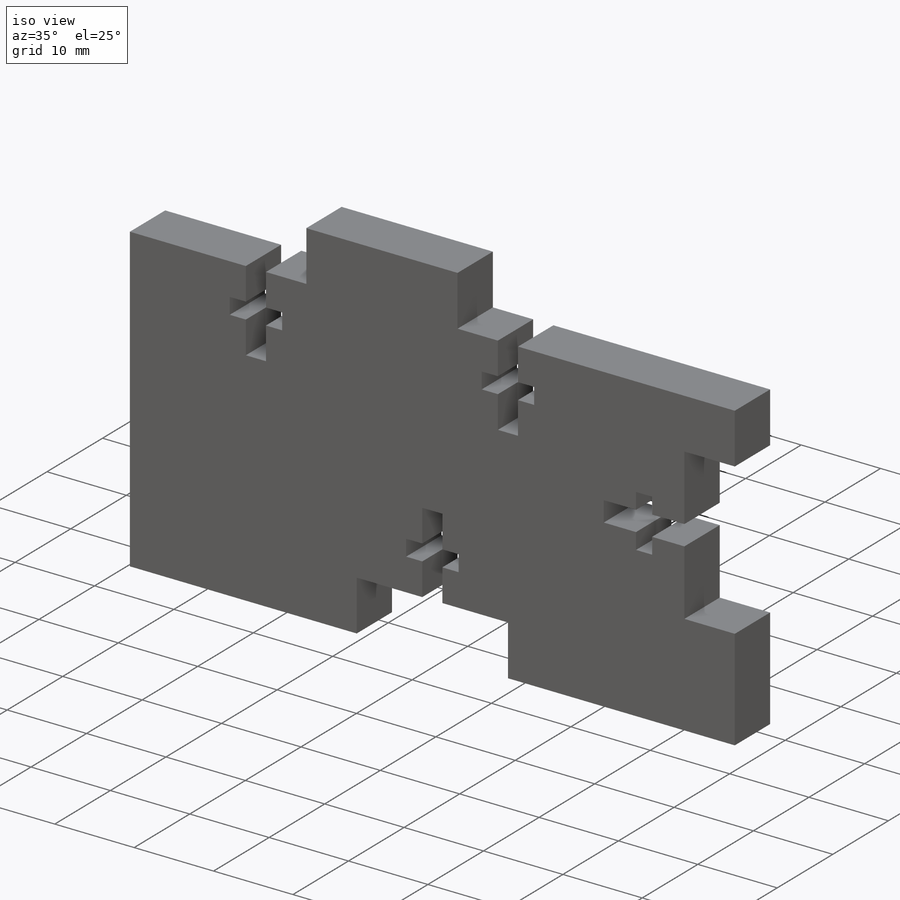
[diagram: iso view]
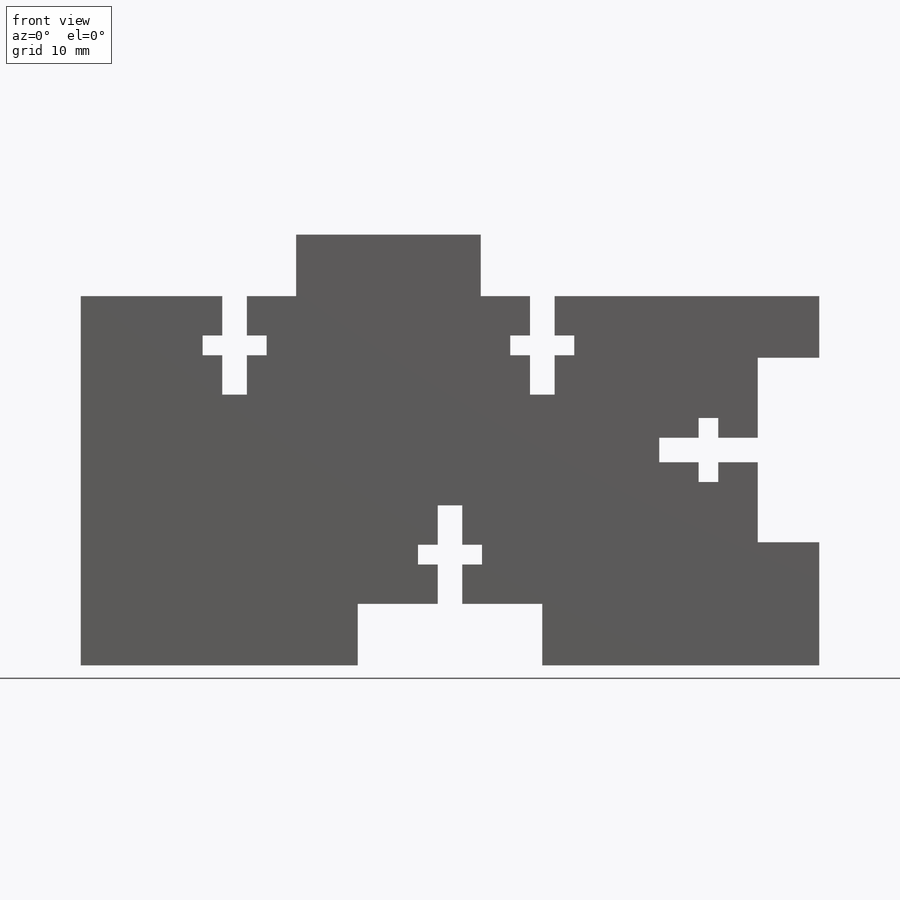
[diagram: front view]
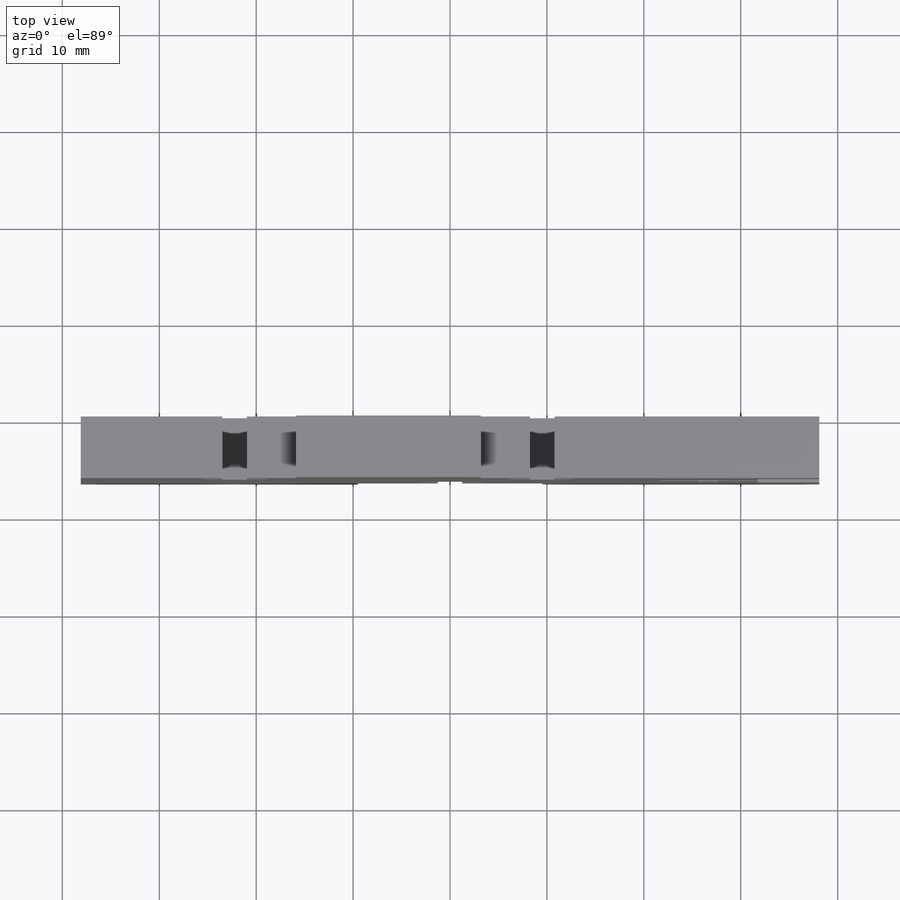
[diagram: top view]
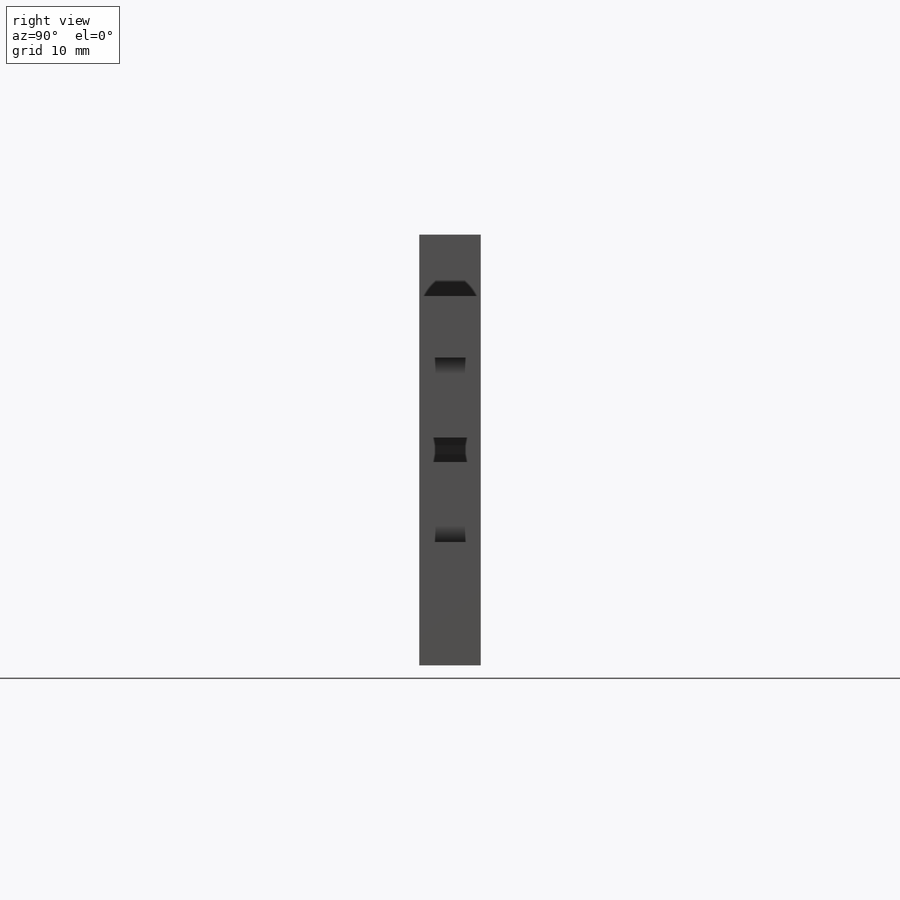
[diagram: right view]
SOLIDWORKS PART (.sldprt)
format: sldprt  version: not decoded by parser v0  size: 363,008 bytes
history: native  units: mm
features: sketch x6, extrude x3, cut_extrude x3, material x1 (+13 scaffold rows collapsed)
feature tree (26):
  scaffold x13  (default folders/planes/origin — collapsed)
  material  "Material <not specified>"
  sketch  "Sketch1"  dims[D1=31.75mm D2=76.2mm]
  extrude  "Boss-Extrude1"  Depth=6.35mm
  sketch  "Sketch2"  dims[D1=19.05mm D2=6.35mm D3=31.75mm D4=19.05mm]
  extrude  "Boss-Extrude2"  [1 undecoded]
  sketch  "Sketch3"  dims[D1=2.54mm D2=10.16mm D3=2.032mm D4=6.604mm D5=15.875mm]
  cut_extrude  "Cut-Extrude1"  [1 undecoded]
  sketch  "Sketch4"  dims[c1.D1=6.35mm c1.D2=19.05mm c1.D3=2.54mm c1.D4=10.16mm c1.D5=6.604mm c1.D6=2.032mm c1.D7=~32.08947mm c1.D8=~2.542304mm c2.D8=90.0deg c3.D8=~32.08947mm c3.D7=1.27mm c4.D8=19.05mm c4.D9=6.35mm c4.D10=10.16mm c4.D11=2.54mm c4.D12=6.604mm c4.D13=2.032mm c4.D14=0.0mm c4.D15=0.0mm]
  cut_extrude  "Cut-Extrude4"  [1 undecoded]
  sketch  "Sketch5"  dims[D1=6.35mm]
  extrude  "Boss-Extrude3"  [1 undecoded]
  sketch  "Sketch6"  dims[D1=19.05mm D2=6.35mm D3=9.525mm D4=10.16mm D5=2.54mm D6=2.032mm D7=6.604mm]
  cut_extrude  "Cut-Extrude5"  [1 undecoded]
decode coverage: 7 of 12 modeling features carry decoded parameters
note: ~ marks probable driven/reference dimensions
note: 5 parameter values undecoded
summary: no parameter record found for 5 features
note: suppression state not decoded; provenance and decode notes live in map.json
